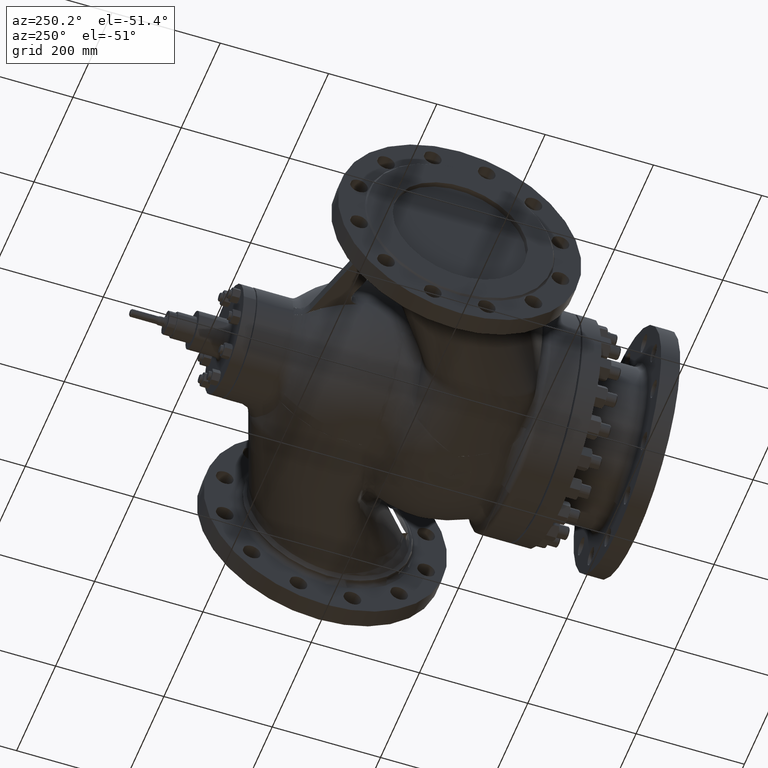
[diagram: clean part render]
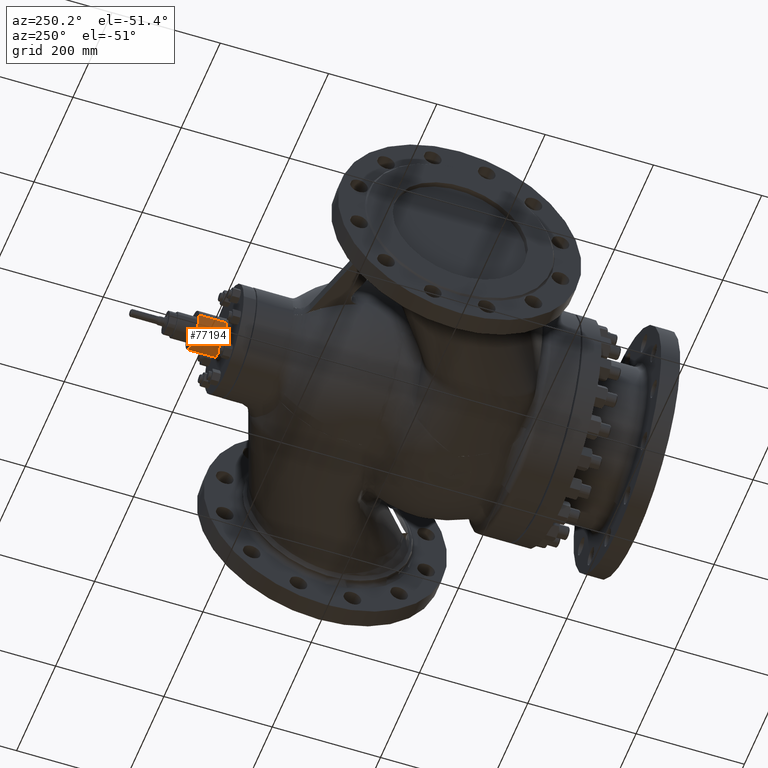
[diagram: same view with one face highlighted and labeled with its STEP entity id]
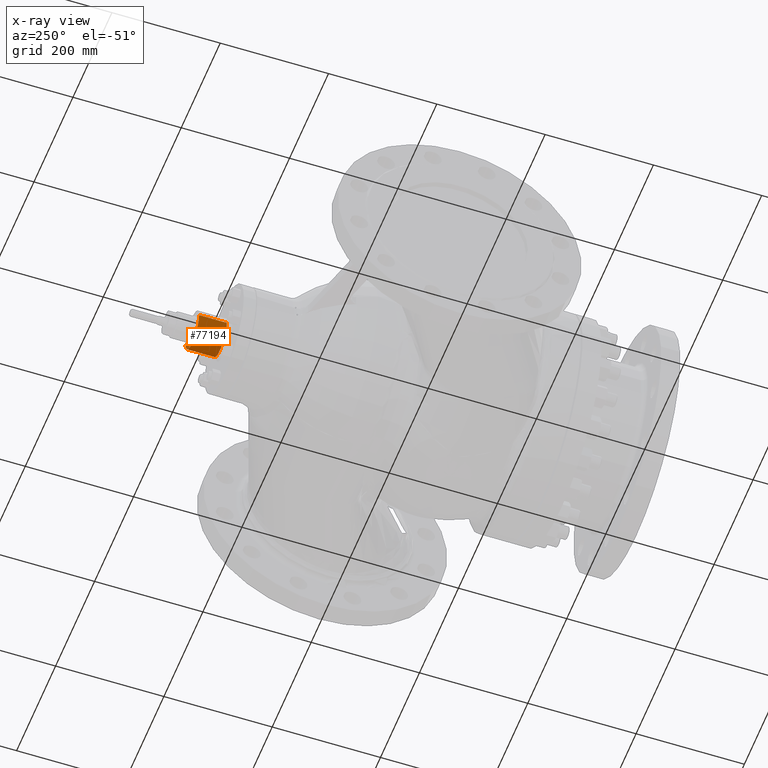
[diagram: x-ray of the same camera — body ghosted, the highlighted face saturated]
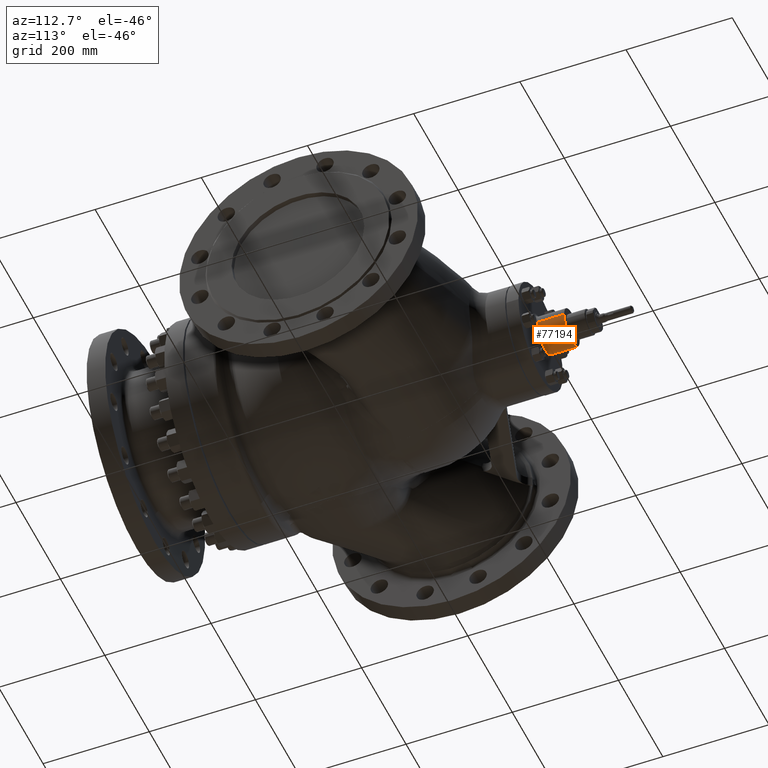
[diagram: same view with one face highlighted and labeled with its STEP entity id]
A machine part, auxiliary view. The second image highlights one B-rep face of the part: STEP entity #77194.
The next image is the same camera in x-ray: the body ghosted, the highlighted face saturated — about 0% of this face is hidden behind the body in this view.
A second angle (auxiliary view) of the same face is appended — the face is thin or edge-on in the first view.
In plain terms, the highlighted cylindrical surface (edge-blend (fillet) strip) has radius 35 mm, axis along (-0, 1, 0).
Its self-contained STEP definition (entity closure, byte-faithful):
#8304 = LINE ( 'NONE', #218539, #199077 ) ;
#23022 = EDGE_CURVE ( 'NONE', #233605, #87680, #145114, .T. ) ;
#25837 = VECTOR ( 'NONE', #111495, 1000.000000000000000 ) ;
#26499 = ORIENTED_EDGE ( 'NONE', *, *, #110900, .T. ) ;
#29183 = DIRECTION ( 'NONE',  ( -2.069502647733771400E-016, 1.000000000000000000, 2.738337125407092700E-018 ) ) ;
#29285 = DIRECTION ( 'NONE',  ( -0.9999320252838844700, 0.0000000000000000000, 0.01165953736943392700 ) ) ;
#42160 = VERTEX_POINT ( 'NONE', #171494 ) ;
#45227 = ORIENTED_EDGE ( 'NONE', *, *, #23022, .F. ) ;
#62834 = DIRECTION ( 'NONE',  ( -2.069502647733771400E-016, 1.000000000000000000, 2.738337125407092700E-018 ) ) ;
#69606 = DIRECTION ( 'NONE',  ( -2.069502647733771400E-016, 1.000000000000000000, 2.738337125407092700E-018 ) ) ;
#70590 = ORIENTED_EDGE ( 'NONE', *, *, #231422, .T. ) ;
#77194 = ADVANCED_FACE ( 'NONE', ( #119014 ), #266791, .T. ) ;
#78909 = AXIS2_PLACEMENT_3D ( 'NONE', #211782, #62834, #236758 ) ;
#85174 = EDGE_LOOP ( 'NONE', ( #125256, #70590, #26499, #45227 ) ) ;
#87680 = VERTEX_POINT ( 'NONE', #307756 ) ;
#110900 = EDGE_CURVE ( 'NONE', #42160, #87680, #8304, .T. ) ;
#111495 = DIRECTION ( 'NONE',  ( -2.069502647733771400E-016, 1.000000000000000000, 2.738337125407092700E-018 ) ) ;
#119014 = FACE_OUTER_BOUND ( 'NONE', #85174, .T. ) ;
#124070 = CARTESIAN_POINT ( 'NONE',  ( -1.348341670472065100E-014, 376.4680851064341000, -6.139483564926428700E-015 ) ) ;
#125256 = ORIENTED_EDGE ( 'NONE', *, *, #145337, .F. ) ;
#145114 = CIRCLE ( 'NONE', #78909, 35.00000000000000000 ) ;
#145337 = EDGE_CURVE ( 'NONE', #225054, #233605, #150446, .T. ) ;
#150446 = LINE ( 'NONE', #260357, #25837 ) ;
#171494 = CARTESIAN_POINT ( 'NONE',  ( -34.99762088493595500, 312.5000000000000000, 0.4080838079301811200 ) ) ;
#178290 = CARTESIAN_POINT ( 'NONE',  ( -2.452045548981902900E-016, 312.5000000000000000, -6.314649747214577300E-015 ) ) ;
#199077 = VECTOR ( 'NONE', #69606, 1000.000000000000000 ) ;
#203241 = DIRECTION ( 'NONE',  ( 0.9999320252838844700, 0.0000000000000000000, -0.01165953736943392700 ) ) ;
#203894 = CARTESIAN_POINT ( 'NONE',  ( 34.99762088493595500, 312.5000000000000000, -0.4080838079301894500 ) ) ;
#211782 = CARTESIAN_POINT ( 'NONE',  ( -1.079966805834042500E-014, 363.5000000000000000, -6.174994553818816200E-015 ) ) ;
#218539 = CARTESIAN_POINT ( 'NONE',  ( -34.99762088493596900, 376.4680851064341000, 0.4080838079301812900 ) ) ;
#225054 = VERTEX_POINT ( 'NONE', #203894 ) ;
#231422 = EDGE_CURVE ( 'NONE', #225054, #42160, #300012, .T. ) ;
#233605 = VERTEX_POINT ( 'NONE', #253997 ) ;
#236758 = DIRECTION ( 'NONE',  ( -0.9999320252838844700, 0.0000000000000000000, 0.01165953736943392700 ) ) ;
#246402 = AXIS2_PLACEMENT_3D ( 'NONE', #178290, #29183, #203241 ) ;
#253997 = CARTESIAN_POINT ( 'NONE',  ( 34.99762088493594100, 363.5000000000000000, -0.4080838079301892200 ) ) ;
#260357 = CARTESIAN_POINT ( 'NONE',  ( 34.99762088493594100, 376.4680851064341000, -0.4080838079301892200 ) ) ;
#266791 = CYLINDRICAL_SURFACE ( 'NONE', #267002, 35.00000000000000000 ) ;
#267002 = AXIS2_PLACEMENT_3D ( 'NONE', #124070, #297875, #29285 ) ;
#297875 = DIRECTION ( 'NONE',  ( -2.069502647733771400E-016, 1.000000000000000000, 2.738337125407092700E-018 ) ) ;
#300012 = CIRCLE ( 'NONE', #246402, 35.00000000000000000 ) ;
#307756 = CARTESIAN_POINT ( 'NONE',  ( -34.99762088493596900, 363.5000000000000000, 0.4080838079301812300 ) ) ;